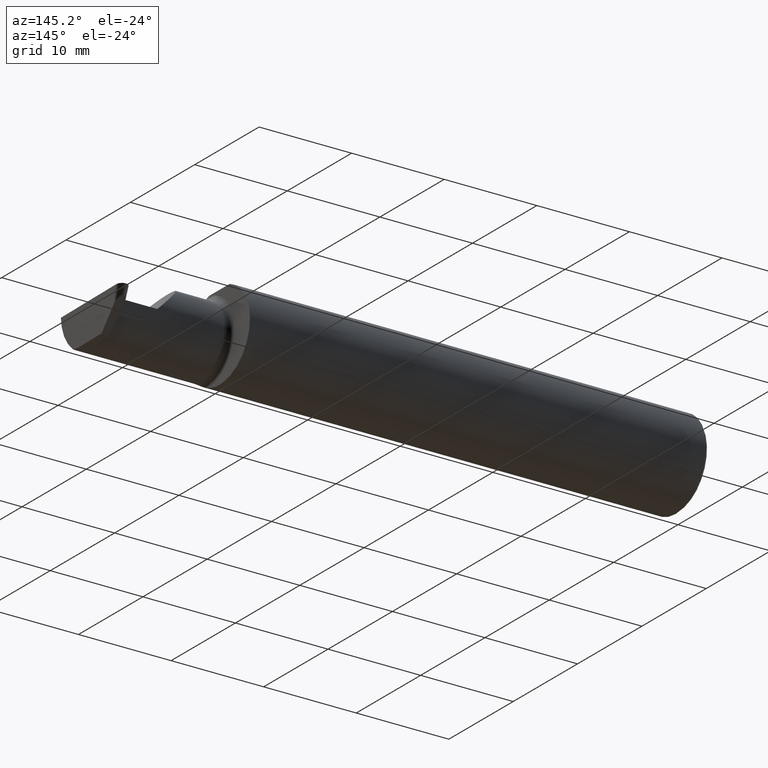
[diagram: clean part render]
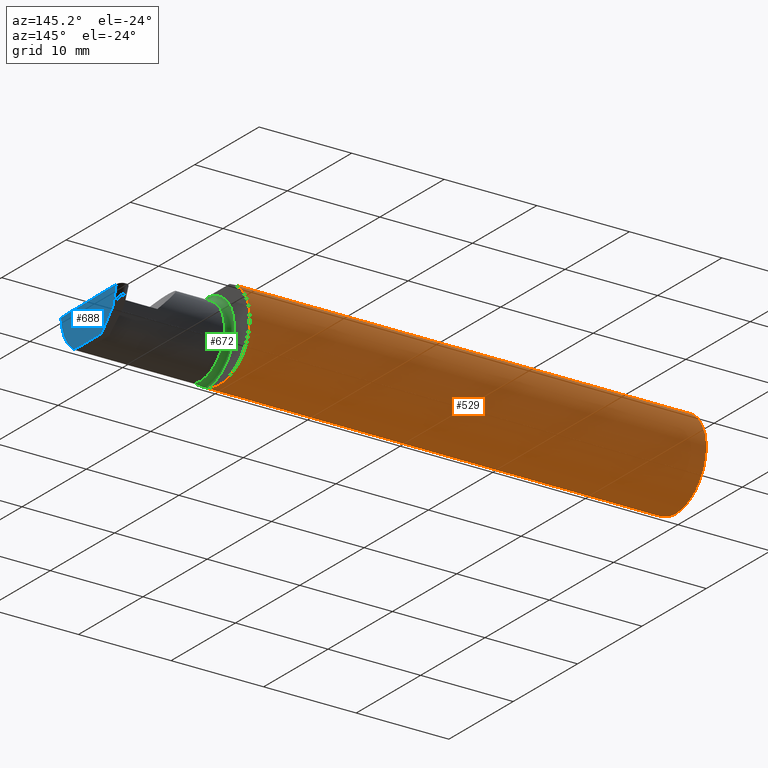
[diagram: same view with three faces highlighted in distinct colors, each labeled with its STEP entity id]
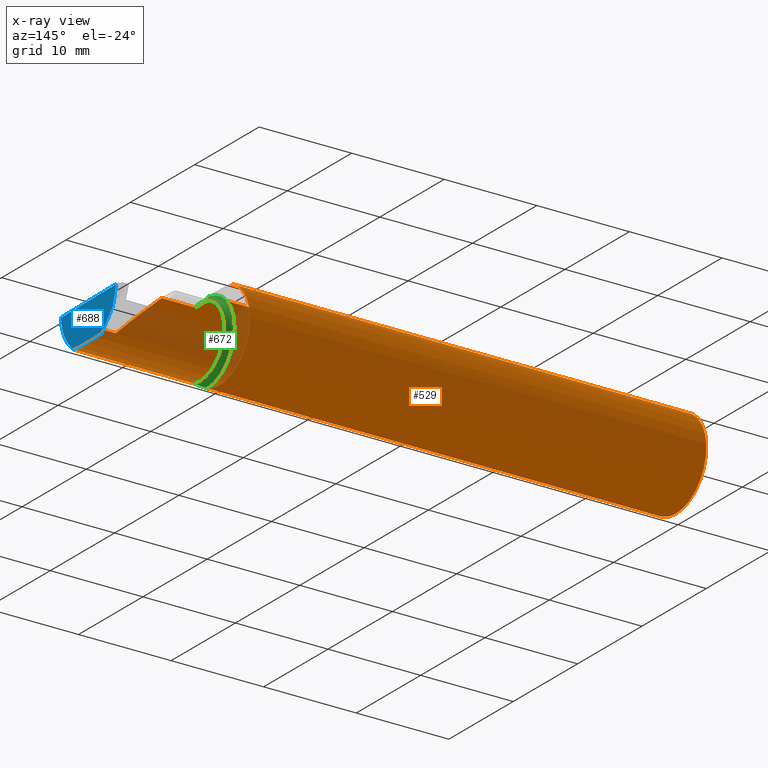
[diagram: x-ray of the same camera — body ghosted, the three highlighted faces saturated]
A machine part, auxiliary view with three faces highlighted in distinct colors.
The next image is the same camera in x-ray (body ghosted, the three faces saturated) — at least one of them is partly hidden behind the body in this view.
Their STEP definitions:

[orange] entity #529 — the highlighted cylindrical surface (partial cylindrical patch) has radius 4.7587 mm, axis along (-1, -0, -0).
#16 = AXIS2_PLACEMENT_3D ( 'NONE', #31, #24, #188 ) ;
#17 = B_SPLINE_CURVE_WITH_KNOTS ( 'NONE', 3,
 ( #687, #192, #413, #580, #301, #636, #397, #141, #358, #405, #531, #76 ),
 .UNSPECIFIED., .F., .F.,
 ( 4, 2, 2, 2, 2, 4 ),
 ( 4.423516731080767705E-05, 0.0004615475116586703792, 0.0008788598560065330814, 0.001296172200354395784, 0.001504828372528326267, 0.001713484544702256968 ),
 .UNSPECIFIED. ) ;
#24 = DIRECTION ( 'NONE',  ( 1.000000000000000000, 3.394713289407038742E-17, 0.000000000000000000 ) ) ;
#27 = VERTEX_POINT ( 'NONE', #487 ) ;
#30 = VERTEX_POINT ( 'NONE', #363 ) ;
#31 = CARTESIAN_POINT ( 'NONE',  ( 1.949999999999999956, 0.000000000000000000, 0.000000000000000000 ) ) ;
#34 = EDGE_CURVE ( 'NONE', #280, #629, #293, .T. ) ;
#48 = LINE ( 'NONE', #211, #199 ) ;
#51 = VERTEX_POINT ( 'NONE', #428 ) ;
#66 = ORIENTED_EDGE ( 'NONE', *, *, #317, .F. ) ;
#70 = CARTESIAN_POINT ( 'NONE',  ( 1.951843912362378086, -0.08846956905169084395, -0.1652353808078972919 ) ) ;
#71 = EDGE_CURVE ( 'NONE', #598, #27, #410, .T. ) ;
#75 = DIRECTION ( 'NONE',  ( 0.000000000000000000, 0.000000000000000000, -1.000000000000000000 ) ) ;
#76 = CARTESIAN_POINT ( 'NONE',  ( 1.974999999999999867, -0.1172600179964006506, 0.1461167706989304205 ) ) ;
#80 = EDGE_CURVE ( 'NONE', #183, #272, #476, .T. ) ;
#82 = CARTESIAN_POINT ( 'NONE',  ( 1.974999999999999867, -0.1172600179964006090, -0.1461167706989303927 ) ) ;
#91 = CARTESIAN_POINT ( 'NONE',  ( 2.113883229301068312, -0.1172600179964003175, 0.1461167706989304760 ) ) ;
#106 = DIRECTION ( 'NONE',  ( 1.000000000000000000, 3.394713289407038742E-17, 0.000000000000000000 ) ) ;
#111 = CARTESIAN_POINT ( 'NONE',  ( 2.150065971957464850, -0.1623470442677540371, 0.1099340280425340488 ) ) ;
#115 = CARTESIAN_POINT ( 'NONE',  ( 2.260000000000000231, -0.1873499999999999888, 2.939152317953647352E-17 ) ) ;
#120 = CIRCLE ( 'NONE', #654, 0.1873499999999999888 ) ;
#121 = ORIENTED_EDGE ( 'NONE', *, *, #71, .F. ) ;
#133 = LINE ( 'NONE', #625, #525 ) ;
#141 = CARTESIAN_POINT ( 'NONE',  ( 1.963163223656403389, -0.1119926267047277602, 0.1502091925606062750 ) ) ;
#147 = CARTESIAN_POINT ( 'NONE',  ( 2.490040979592266890, -0.1172600179964006090, -0.1461167706989303927 ) ) ;
#149 = LINE ( 'NONE', #306, #571 ) ;
#153 = CARTESIAN_POINT ( 'NONE',  ( 2.213980000000000281, -0.1172600179964006090, -0.1461167706989303927 ) ) ;
#157 = CARTESIAN_POINT ( 'NONE',  ( 2.490517704308097713, -0.1623470442677541203, -0.1099340280425338823 ) ) ;
#159 = CARTESIAN_POINT ( 'NONE',  ( 1.963203859946833552, -0.1120371980050637178, -0.1501764597936560142 ) ) ;
#160 = CARTESIAN_POINT ( 'NONE',  ( 2.493920841729410753, -0.1873499999999999888, 0.000000000000000000 ) ) ;
#165 = EDGE_CURVE ( 'NONE', #27, #412, #626, .T. ) ;
#166 = CARTESIAN_POINT ( 'NONE',  ( 1.949999999999999512, -0.07368234487347193051, -0.1723418180300748115 ) ) ;
#176 = ORIENTED_EDGE ( 'NONE', *, *, #461, .F. ) ;
#181 = CARTESIAN_POINT ( 'NONE',  ( 1.949999999999999956, -0.06851976604679065053, 0.1743704796142198643 ) ) ;
#183 = VERTEX_POINT ( 'NONE', #499 ) ;
#188 = DIRECTION ( 'NONE',  ( 0.000000000000000000, 1.000000000000000000, 0.000000000000000000 ) ) ;
#189 = DIRECTION ( 'NONE',  ( -1.000000000000000000, -0.000000000000000000, -0.000000000000000000 ) ) ;
#192 = CARTESIAN_POINT ( 'NONE',  ( 1.949999999999999956, -0.07367581953296704900, 0.1723443821957854338 ) ) ;
#194 = LINE ( 'NONE', #153, #342 ) ;
#199 = VECTOR ( 'NONE', #661, 39.37007874015748143 ) ;
#202 = EDGE_CURVE ( 'NONE', #470, #237, #489, .T. ) ;
#205 = CARTESIAN_POINT ( 'NONE',  ( 0.000000000000000000, 0.000000000000000000, 0.000000000000000000 ) ) ;
#206 = CARTESIAN_POINT ( 'NONE',  ( 2.491901754046578876, -0.1873499999999999610, -0.05781030015605125721 ) ) ;
#211 = CARTESIAN_POINT ( 'NONE',  ( 0.000000000000000000, -0.06325108694718235836, 0.1763499999999999235 ) ) ;
#225 = CARTESIAN_POINT ( 'NONE',  ( 1.958439486659306450, -0.1064616213911156600, -0.1542305641651501857 ) ) ;
#227 = EDGE_CURVE ( 'NONE', #695, #51, #297, .T. ) ;
#237 = VERTEX_POINT ( 'NONE', #181 ) ;
#246 = DIRECTION ( 'NONE',  ( -1.000000000000000000, -0.000000000000000000, -0.000000000000000000 ) ) ;
#247 = ORIENTED_EDGE ( 'NONE', *, *, #560, .F. ) ;
#252 = ORIENTED_EDGE ( 'NONE', *, *, #202, .F. ) ;
#254 = DIRECTION ( 'NONE',  ( 1.000000000000000000, 0.000000000000000000, 0.000000000000000000 ) ) ;
#258 = ORIENTED_EDGE ( 'NONE', *, *, #80, .T. ) ;
#259 = CARTESIAN_POINT ( 'NONE',  ( 0.009999999999999346217, 0.06325108694718235836, 0.1763499999999999235 ) ) ;
#260 = AXIS2_PLACEMENT_3D ( 'NONE', #579, #569, #75 ) ;
#272 = VERTEX_POINT ( 'NONE', #91 ) ;
#273 = CARTESIAN_POINT ( 'NONE',  ( 1.969511795768554174, -0.1163687266324233971, -0.1468371510166789073 ) ) ;
#274 = ORIENTED_EDGE ( 'NONE', *, *, #34, .T. ) ;
#280 = VERTEX_POINT ( 'NONE', #147 ) ;
#284 = LINE ( 'NONE', #677, #418 ) ;
#293 =( BOUNDED_CURVE ( )  B_SPLINE_CURVE ( 3, ( #595, #157, #206, #320 ),
 .UNSPECIFIED., .F., .F. ) 
 B_SPLINE_CURVE_WITH_KNOTS ( ( 4, 4 ),
 ( 0.2128041086811292559, 1.107331509589577045 ),
 .UNSPECIFIED. ) 
 CURVE ( )  GEOMETRIC_REPRESENTATION_ITEM ( )  RATIONAL_B_SPLINE_CURVE ( ( 1.000000000000000000, 0.9344226172588802060, 0.9344226172588802060, 1.000000000000000000 ) ) 
 REPRESENTATION_ITEM ( '' )  );
#295 = AXIS2_PLACEMENT_3D ( 'NONE', #604, #106, #325 ) ;
#297 = CIRCLE ( 'NONE', #260, 0.1873499999999999888 ) ;
#301 = CARTESIAN_POINT ( 'NONE',  ( 1.952945243422982369, -0.09312071749437422774, 0.1626553472577906556 ) ) ;
#306 = CARTESIAN_POINT ( 'NONE',  ( 2.213980000000000281, -0.1172600179964006090, 0.1461167706989303927 ) ) ;
#317 = EDGE_CURVE ( 'NONE', #30, #272, #149, .T. ) ;
#320 = CARTESIAN_POINT ( 'NONE',  ( 2.493920841729410753, -0.1873499999999999888, 0.000000000000000000 ) ) ;
#325 = DIRECTION ( 'NONE',  ( 0.000000000000000000, 1.000000000000000000, 0.000000000000000000 ) ) ;
#332 = CARTESIAN_POINT ( 'NONE',  ( 2.113883229301068312, -0.1172600179964003175, 0.1461167706989304760 ) ) ;
#342 = VECTOR ( 'NONE', #638, 39.37007874015748143 ) ;
#358 = CARTESIAN_POINT ( 'NONE',  ( 1.965004157323697376, -0.1137044537483316159, 0.1489098419202428691 ) ) ;
#363 = CARTESIAN_POINT ( 'NONE',  ( 1.974999999999999867, -0.1172600179964006506, 0.1461167706989304205 ) ) ;
#385 = CARTESIAN_POINT ( 'NONE',  ( 1.972174967710399685, -0.1172600179964005812, -0.1461167706989304760 ) ) ;
#387 = CARTESIAN_POINT ( 'NONE',  ( 1.952960551809340917, -0.09317341542745741223, -0.1626248379125196930 ) ) ;
#390 = EDGE_CURVE ( 'NONE', #412, #632, #133, .T. ) ;
#393 = CARTESIAN_POINT ( 'NONE',  ( 0.009999999999999346217, 0.000000000000000000, 0.000000000000000000 ) ) ;
#397 = CARTESIAN_POINT ( 'NONE',  ( 1.958475602106621194, -0.1064978748893405658, 0.1542035505680384166 ) ) ;
#405 = CARTESIAN_POINT ( 'NONE',  ( 1.969481469043492528, -0.1163560528186165510, 0.1468472430636323656 ) ) ;
#407 = EDGE_LOOP ( 'NONE', ( #247, #274, #416, #258, #66, #176, #252, #501, #504, #557, #519, #639, #121 ) ) ;
#410 = B_SPLINE_CURVE_WITH_KNOTS ( 'NONE', 3,
 ( #658, #385, #273, #664, #159, #225, #446, #387, #70, #668, #166, #502 ),
 .UNSPECIFIED., .F., .F.,
 ( 4, 2, 2, 2, 2, 4 ),
 ( 1.967976973726874814E-07, 0.0002120314145722334523, 0.0004238660314470941797, 0.0008475352651968039251, 0.001271204498946513616, 0.001694873732696223307 ),
 .UNSPECIFIED. ) ;
#412 = VERTEX_POINT ( 'NONE', #457 ) ;
#413 = CARTESIAN_POINT ( 'NONE',  ( 1.950353553376444671, -0.07868116735658677030, 0.1701139256562800572 ) ) ;
#416 = ORIENTED_EDGE ( 'NONE', *, *, #439, .T. ) ;
#418 = VECTOR ( 'NONE', #464, 39.37007874015748143 ) ;
#428 = CARTESIAN_POINT ( 'NONE',  ( 0.009999999999999346217, 0.000000000000000000, -0.1873499999999999888 ) ) ;
#439 = EDGE_CURVE ( 'NONE', #629, #183, #284, .T. ) ;
#446 = CARTESIAN_POINT ( 'NONE',  ( 1.956304331342286762, -0.1022198306720690231, -0.1570962426853819704 ) ) ;
#457 = CARTESIAN_POINT ( 'NONE',  ( 1.949999999999999956, 0.06325108694718235836, 0.1763499999999999235 ) ) ;
#461 = EDGE_CURVE ( 'NONE', #237, #30, #17, .T. ) ;
#464 = DIRECTION ( 'NONE',  ( -1.000000000000000000, -0.000000000000000000, -0.000000000000000000 ) ) ;
#469 = CYLINDRICAL_SURFACE ( 'NONE', #478, 0.1873499999999999888 ) ;
#470 = VERTEX_POINT ( 'NONE', #513 ) ;
#475 = DIRECTION ( 'NONE',  ( 1.000000000000000000, 3.394713289407038742E-17, 0.000000000000000000 ) ) ;
#476 =( BOUNDED_CURVE ( )  B_SPLINE_CURVE ( 3, ( #115, #608, #111, #332 ),
 .UNSPECIFIED., .F., .F. ) 
 B_SPLINE_CURVE_WITH_KNOTS ( ( 4, 4 ),
 ( 4.712388980384688786, 5.606916381293139295 ),
 .UNSPECIFIED. ) 
 CURVE ( )  GEOMETRIC_REPRESENTATION_ITEM ( )  RATIONAL_B_SPLINE_CURVE ( ( 1.000000000000000000, 0.9344226172588797619, 0.9344226172588797619, 1.000000000000000000 ) ) 
 REPRESENTATION_ITEM ( '' )  );
#478 = AXIS2_PLACEMENT_3D ( 'NONE', #205, #246, #646 ) ;
#485 = DIRECTION ( 'NONE',  ( 0.000000000000000000, 0.000000000000000000, -1.000000000000000000 ) ) ;
#487 = CARTESIAN_POINT ( 'NONE',  ( 1.949999999999999956, -0.06851976604679065053, -0.1743704796142198643 ) ) ;
#489 = CIRCLE ( 'NONE', #16, 0.1873499999999999888 ) ;
#495 = CARTESIAN_POINT ( 'NONE',  ( 0.009999999999999346217, -0.06325108694718235836, 0.1763499999999999235 ) ) ;
#499 = CARTESIAN_POINT ( 'NONE',  ( 2.260000000000000231, -0.1873499999999999888, 2.939152317953647352E-17 ) ) ;
#501 = ORIENTED_EDGE ( 'NONE', *, *, #652, .F. ) ;
#502 = CARTESIAN_POINT ( 'NONE',  ( 1.949999999999999956, -0.06851976604679065053, -0.1743704796142198643 ) ) ;
#504 = ORIENTED_EDGE ( 'NONE', *, *, #227, .T. ) ;
#513 = CARTESIAN_POINT ( 'NONE',  ( 1.949999999999999956, -0.06325108694718283020, 0.1763499999999999235 ) ) ;
#519 = ORIENTED_EDGE ( 'NONE', *, *, #390, .F. ) ;
#525 = VECTOR ( 'NONE', #189, 39.37007874015748143 ) ;
#528 = FACE_OUTER_BOUND ( 'NONE', #407, .T. ) ;
#529 = ADVANCED_FACE ( 'NONE', ( #528 ), #469, .T. ) ;
#531 = CARTESIAN_POINT ( 'NONE',  ( 1.972161949849307927, -0.1172600179964061184, 0.1461167706989260351 ) ) ;
#557 = ORIENTED_EDGE ( 'NONE', *, *, #700, .T. ) ;
#560 = EDGE_CURVE ( 'NONE', #280, #598, #194, .T. ) ;
#569 = DIRECTION ( 'NONE',  ( 1.000000000000000000, 0.000000000000000000, 0.000000000000000000 ) ) ;
#571 = VECTOR ( 'NONE', #475, 39.37007874015748143 ) ;
#579 = CARTESIAN_POINT ( 'NONE',  ( 0.009999999999999346217, 0.000000000000000000, 0.000000000000000000 ) ) ;
#580 = CARTESIAN_POINT ( 'NONE',  ( 1.951829077486400443, -0.08839624499054650475, 0.1652742498708037744 ) ) ;
#595 = CARTESIAN_POINT ( 'NONE',  ( 2.490040979592266890, -0.1172600179964006090, -0.1461167706989303927 ) ) ;
#598 = VERTEX_POINT ( 'NONE', #82 ) ;
#604 = CARTESIAN_POINT ( 'NONE',  ( 1.949999999999999956, 0.000000000000000000, 0.000000000000000000 ) ) ;
#608 = CARTESIAN_POINT ( 'NONE',  ( 2.202189699843948301, -0.1873500000000000443, 0.05781030015605120170 ) ) ;
#625 = CARTESIAN_POINT ( 'NONE',  ( 0.000000000000000000, 0.06325108694718235836, 0.1763499999999999235 ) ) ;
#626 = CIRCLE ( 'NONE', #295, 0.1873499999999999888 ) ;
#629 = VERTEX_POINT ( 'NONE', #160 ) ;
#632 = VERTEX_POINT ( 'NONE', #259 ) ;
#636 = CARTESIAN_POINT ( 'NONE',  ( 1.956287624083519416, -0.1021858045380144991, 0.1571187174372875306 ) ) ;
#638 = DIRECTION ( 'NONE',  ( -1.000000000000000000, -3.394713289407038742E-17, -0.000000000000000000 ) ) ;
#639 = ORIENTED_EDGE ( 'NONE', *, *, #165, .F. ) ;
#646 = DIRECTION ( 'NONE',  ( 0.000000000000000000, 0.000000000000000000, 1.000000000000000000 ) ) ;
#652 = EDGE_CURVE ( 'NONE', #695, #470, #48, .T. ) ;
#654 = AXIS2_PLACEMENT_3D ( 'NONE', #393, #254, #485 ) ;
#658 = CARTESIAN_POINT ( 'NONE',  ( 1.974999999999999867, -0.1172600179964006090, -0.1461167706989303927 ) ) ;
#661 = DIRECTION ( 'NONE',  ( 1.000000000000000000, 0.000000000000000000, 0.000000000000000000 ) ) ;
#664 = CARTESIAN_POINT ( 'NONE',  ( 1.965028532764137914, -0.1137241120808234474, -0.1488947809299404901 ) ) ;
#668 = CARTESIAN_POINT ( 'NONE',  ( 1.950358271039143832, -0.07873626113568080176, -0.1700887912276895508 ) ) ;
#677 = CARTESIAN_POINT ( 'NONE',  ( 3.749399456654646757E-32, -0.1873499999999999610, 3.061616997868383634E-16 ) ) ;
#687 = CARTESIAN_POINT ( 'NONE',  ( 1.949999999999999956, -0.06851976604679065053, 0.1743704796142198643 ) ) ;
#695 = VERTEX_POINT ( 'NONE', #495 ) ;
#700 = EDGE_CURVE ( 'NONE', #51, #632, #120, .T. ) ;

[blue] entity #688 — the highlighted planar face has unit normal (-0.9992, 0.0174, 0.0349).
#6 = FACE_OUTER_BOUND ( 'NONE', #64, .T. ) ;
#34 = EDGE_CURVE ( 'NONE', #280, #629, #293, .T. ) ;
#53 = DIRECTION ( 'NONE',  ( -0.01745240643727575397, -0.9998476951563912696, 0.000000000000000000 ) ) ;
#58 = CARTESIAN_POINT ( 'NONE',  ( 2.499996417790078862, 0.1607195194005952565, 0.000000000000000000 ) ) ;
#64 = EDGE_LOOP ( 'NONE', ( #116, #455, #620, #403, #510, #384 ) ) ;
#67 = CARTESIAN_POINT ( 'NONE',  ( 2.499991330919623778, 0.1598853660763216722, 0.0002712393593816879249 ) ) ;
#88 = EDGE_CURVE ( 'NONE', #651, #386, #559, .T. ) ;
#107 = DIRECTION ( 'NONE',  ( -0.9992386149554827179, 0.01744177490282240728, 0.03489949670250104552 ) ) ;
#116 = ORIENTED_EDGE ( 'NONE', *, *, #642, .F. ) ;
#136 = CARTESIAN_POINT ( 'NONE',  ( 2.499980319257137484, 0.1597972350660649132, 0.000000000000000000 ) ) ;
#147 = CARTESIAN_POINT ( 'NONE',  ( 2.490040979592266890, -0.1172600179964006090, -0.1461167706989303927 ) ) ;
#155 = VECTOR ( 'NONE', #164, 39.37007874015748143 ) ;
#156 = CARTESIAN_POINT ( 'NONE',  ( 2.490145048687840479, -0.1061291577212409298, -0.1486999626928446616 ) ) ;
#157 = CARTESIAN_POINT ( 'NONE',  ( 2.490517704308097713, -0.1623470442677541203, -0.1099340280425338823 ) ) ;
#160 = CARTESIAN_POINT ( 'NONE',  ( 2.493920841729410753, -0.1873499999999999888, 0.000000000000000000 ) ) ;
#163 = DIRECTION ( 'NONE',  ( 0.03858184836401778312, 0.3087869137032490108, 0.9503484007996426675 ) ) ;
#164 = DIRECTION ( 'NONE',  ( -0.03701368837992397021, -0.7066222423871549863, -0.7066222423871630909 ) ) ;
#170 = VECTOR ( 'NONE', #408, 39.37007874015747433 ) ;
#206 = CARTESIAN_POINT ( 'NONE',  ( 2.491901754046578876, -0.1873499999999999610, -0.05781030015605125721 ) ) ;
#215 = EDGE_CURVE ( 'NONE', #331, #422, #516, .T. ) ;
#219 = LINE ( 'NONE', #444, #155 ) ;
#224 = PLANE ( 'NONE',  #383 ) ;
#280 = VERTEX_POINT ( 'NONE', #147 ) ;
#293 =( BOUNDED_CURVE ( )  B_SPLINE_CURVE ( 3, ( #595, #157, #206, #320 ),
 .UNSPECIFIED., .F., .F. ) 
 B_SPLINE_CURVE_WITH_KNOTS ( ( 4, 4 ),
 ( 0.2128041086811292559, 1.107331509589577045 ),
 .UNSPECIFIED. ) 
 CURVE ( )  GEOMETRIC_REPRESENTATION_ITEM ( )  RATIONAL_B_SPLINE_CURVE ( ( 1.000000000000000000, 0.9344226172588802060, 0.9344226172588802060, 1.000000000000000000 ) ) 
 REPRESENTATION_ITEM ( '' )  );
#300 = CARTESIAN_POINT ( 'NONE',  ( 2.490297801769516539, -0.09477667630339428606, -0.1500000000000000222 ) ) ;
#304 = EDGE_CURVE ( 'NONE', #280, #422, #420, .T. ) ;
#318 = CARTESIAN_POINT ( 'NONE',  ( 2.496943030093102145, 0.1354885203010862682, -0.07481453124206371985 ) ) ;
#320 = CARTESIAN_POINT ( 'NONE',  ( 2.493920841729410753, -0.1873499999999999888, 0.000000000000000000 ) ) ;
#331 = VERTEX_POINT ( 'NONE', #373 ) ;
#368 = CARTESIAN_POINT ( 'NONE',  ( 2.490497255146305822, -0.08335000000000006293, -0.1500000000000000500 ) ) ;
#373 = CARTESIAN_POINT ( 'NONE',  ( 2.493004728488126265, 0.06030305154315079158, -0.1500000000000000500 ) ) ;
#383 = AXIS2_PLACEMENT_3D ( 'NONE', #58, #107, #549 ) ;
#384 = ORIENTED_EDGE ( 'NONE', *, *, #215, .F. ) ;
#386 = VERTEX_POINT ( 'NONE', #136 ) ;
#403 = ORIENTED_EDGE ( 'NONE', *, *, #34, .F. ) ;
#408 = DIRECTION ( 'NONE',  ( -0.01745240643727576091, -0.9998476951563914916, 0.000000000000000000 ) ) ;
#420 =( BOUNDED_CURVE ( )  B_SPLINE_CURVE ( 3, ( #471, #156, #300, #368 ),
 .UNSPECIFIED., .F., .F. ) 
 B_SPLINE_CURVE_WITH_KNOTS ( ( 4, 4 ),
 ( 0.2354267821558766460, 0.4634648172053196791 ),
 .UNSPECIFIED. ) 
 CURVE ( )  GEOMETRIC_REPRESENTATION_ITEM ( )  RATIONAL_B_SPLINE_CURVE ( ( 1.000000000000000000, 0.9956712472009929815, 0.9956712472009929815, 1.000000000000000000 ) ) 
 REPRESENTATION_ITEM ( '' )  );
#422 = VERTEX_POINT ( 'NONE', #622 ) ;
#444 = CARTESIAN_POINT ( 'NONE',  ( 2.495446507120537838, 0.1069186461560726192, -0.1033844053870776880 ) ) ;
#445 = VECTOR ( 'NONE', #53, 39.37007874015748854 ) ;
#454 = VECTOR ( 'NONE', #163, 39.37007874015748854 ) ;
#455 = ORIENTED_EDGE ( 'NONE', *, *, #88, .T. ) ;
#471 = CARTESIAN_POINT ( 'NONE',  ( 2.490040979592266890, -0.1172600179964006090, -0.1461167706989303927 ) ) ;
#510 = ORIENTED_EDGE ( 'NONE', *, *, #304, .T. ) ;
#516 = LINE ( 'NONE', #575, #170 ) ;
#518 = LINE ( 'NONE', #545, #445 ) ;
#545 = CARTESIAN_POINT ( 'NONE',  ( 2.499996417790078862, 0.1607195194005952565, 0.000000000000000000 ) ) ;
#549 = DIRECTION ( 'NONE',  ( 0.03490480639812536257, 0.000000000000000000, 0.9993906415863165194 ) ) ;
#559 = LINE ( 'NONE', #67, #454 ) ;
#575 = CARTESIAN_POINT ( 'NONE',  ( 2.490571174359867967, -0.07911517109126284253, -0.1500000000000000500 ) ) ;
#595 = CARTESIAN_POINT ( 'NONE',  ( 2.490040979592266890, -0.1172600179964006090, -0.1461167706989303927 ) ) ;
#614 = EDGE_CURVE ( 'NONE', #386, #629, #518, .T. ) ;
#620 = ORIENTED_EDGE ( 'NONE', *, *, #614, .T. ) ;
#622 = CARTESIAN_POINT ( 'NONE',  ( 2.490497255146305822, -0.08335000000000006293, -0.1500000000000000500 ) ) ;
#629 = VERTEX_POINT ( 'NONE', #160 ) ;
#642 = EDGE_CURVE ( 'NONE', #651, #331, #219, .T. ) ;
#651 = VERTEX_POINT ( 'NONE', #318 ) ;
#688 = ADVANCED_FACE ( 'NONE', ( #6 ), #224, .F. ) ;

[green] entity #672 — the highlighted toroidal blend (fillet) surface has major radius 4.445 mm and minor (blend) radius 0.635 mm.
#17 = B_SPLINE_CURVE_WITH_KNOTS ( 'NONE', 3,
 ( #687, #192, #413, #580, #301, #636, #397, #141, #358, #405, #531, #76 ),
 .UNSPECIFIED., .F., .F.,
 ( 4, 2, 2, 2, 2, 4 ),
 ( 4.423516731080767705E-05, 0.0004615475116586703792, 0.0008788598560065330814, 0.001296172200354395784, 0.001504828372528326267, 0.001713484544702256968 ),
 .UNSPECIFIED. ) ;
#27 = VERTEX_POINT ( 'NONE', #487 ) ;
#30 = VERTEX_POINT ( 'NONE', #363 ) ;
#60 = ORIENTED_EDGE ( 'NONE', *, *, #461, .T. ) ;
#62 = DIRECTION ( 'NONE',  ( 3.394713289407038742E-17, -1.000000000000000000, 0.000000000000000000 ) ) ;
#70 = CARTESIAN_POINT ( 'NONE',  ( 1.951843912362378086, -0.08846956905169084395, -0.1652353808078972919 ) ) ;
#71 = EDGE_CURVE ( 'NONE', #598, #27, #410, .T. ) ;
#76 = CARTESIAN_POINT ( 'NONE',  ( 1.974999999999999867, -0.1172600179964006506, 0.1461167706989304205 ) ) ;
#82 = CARTESIAN_POINT ( 'NONE',  ( 1.974999999999999867, -0.1172600179964006090, -0.1461167706989303927 ) ) ;
#89 = CIRCLE ( 'NONE', #144, 0.1500000000000000500 ) ;
#141 = CARTESIAN_POINT ( 'NONE',  ( 1.963163223656403389, -0.1119926267047277602, 0.1502091925606062750 ) ) ;
#143 = CIRCLE ( 'NONE', #466, 0.1749999999999999889 ) ;
#144 = AXIS2_PLACEMENT_3D ( 'NONE', #565, #617, #289 ) ;
#159 = CARTESIAN_POINT ( 'NONE',  ( 1.963203859946833552, -0.1120371980050637178, -0.1501764597936560142 ) ) ;
#166 = CARTESIAN_POINT ( 'NONE',  ( 1.949999999999999512, -0.07368234487347193051, -0.1723418180300748115 ) ) ;
#181 = CARTESIAN_POINT ( 'NONE',  ( 1.949999999999999956, -0.06851976604679065053, 0.1743704796142198643 ) ) ;
#192 = CARTESIAN_POINT ( 'NONE',  ( 1.949999999999999956, -0.07367581953296704900, 0.1723443821957854338 ) ) ;
#225 = CARTESIAN_POINT ( 'NONE',  ( 1.958439486659306450, -0.1064616213911156600, -0.1542305641651501857 ) ) ;
#231 = DIRECTION ( 'NONE',  ( -1.000000000000000000, -3.394713289407038742E-17, -0.000000000000000000 ) ) ;
#237 = VERTEX_POINT ( 'NONE', #181 ) ;
#262 = TOROIDAL_SURFACE ( 'NONE', #665, 0.1749999999999999889, 0.02499999999999993894 ) ;
#273 = CARTESIAN_POINT ( 'NONE',  ( 1.969511795768554174, -0.1163687266324233971, -0.1468371510166789073 ) ) ;
#289 = DIRECTION ( 'NONE',  ( 0.000000000000000000, -1.000000000000000000, 0.000000000000000000 ) ) ;
#301 = CARTESIAN_POINT ( 'NONE',  ( 1.952945243422982369, -0.09312071749437422774, 0.1626553472577906556 ) ) ;
#349 = ORIENTED_EDGE ( 'NONE', *, *, #71, .T. ) ;
#358 = CARTESIAN_POINT ( 'NONE',  ( 1.965004157323697376, -0.1137044537483316159, 0.1489098419202428691 ) ) ;
#363 = CARTESIAN_POINT ( 'NONE',  ( 1.974999999999999867, -0.1172600179964006506, 0.1461167706989304205 ) ) ;
#376 = DIRECTION ( 'NONE',  ( -1.000000000000000000, -3.394713289407038742E-17, -0.000000000000000000 ) ) ;
#380 = EDGE_CURVE ( 'NONE', #237, #27, #143, .T. ) ;
#385 = CARTESIAN_POINT ( 'NONE',  ( 1.972174967710399685, -0.1172600179964005812, -0.1461167706989304760 ) ) ;
#387 = CARTESIAN_POINT ( 'NONE',  ( 1.952960551809340917, -0.09317341542745741223, -0.1626248379125196930 ) ) ;
#397 = CARTESIAN_POINT ( 'NONE',  ( 1.958475602106621194, -0.1064978748893405658, 0.1542035505680384166 ) ) ;
#398 = ORIENTED_EDGE ( 'NONE', *, *, #602, .T. ) ;
#405 = CARTESIAN_POINT ( 'NONE',  ( 1.969481469043492528, -0.1163560528186165510, 0.1468472430636323656 ) ) ;
#410 = B_SPLINE_CURVE_WITH_KNOTS ( 'NONE', 3,
 ( #658, #385, #273, #664, #159, #225, #446, #387, #70, #668, #166, #502 ),
 .UNSPECIFIED., .F., .F.,
 ( 4, 2, 2, 2, 2, 4 ),
 ( 1.967976973726874814E-07, 0.0002120314145722334523, 0.0004238660314470941797, 0.0008475352651968039251, 0.001271204498946513616, 0.001694873732696223307 ),
 .UNSPECIFIED. ) ;
#413 = CARTESIAN_POINT ( 'NONE',  ( 1.950353553376444671, -0.07868116735658677030, 0.1701139256562800572 ) ) ;
#435 = FACE_OUTER_BOUND ( 'NONE', #702, .T. ) ;
#446 = CARTESIAN_POINT ( 'NONE',  ( 1.956304331342286762, -0.1022198306720690231, -0.1570962426853819704 ) ) ;
#461 = EDGE_CURVE ( 'NONE', #237, #30, #17, .T. ) ;
#465 = ORIENTED_EDGE ( 'NONE', *, *, #380, .F. ) ;
#466 = AXIS2_PLACEMENT_3D ( 'NONE', #467, #231, #690 ) ;
#467 = CARTESIAN_POINT ( 'NONE',  ( 1.949999999999999956, -0.08335000000000000742, 0.000000000000000000 ) ) ;
#487 = CARTESIAN_POINT ( 'NONE',  ( 1.949999999999999956, -0.06851976604679065053, -0.1743704796142198643 ) ) ;
#502 = CARTESIAN_POINT ( 'NONE',  ( 1.949999999999999956, -0.06851976604679065053, -0.1743704796142198643 ) ) ;
#531 = CARTESIAN_POINT ( 'NONE',  ( 1.972161949849307927, -0.1172600179964061184, 0.1461167706989260351 ) ) ;
#538 = CARTESIAN_POINT ( 'NONE',  ( 1.974999999999999867, -0.08334999999999999354, 0.000000000000000000 ) ) ;
#565 = CARTESIAN_POINT ( 'NONE',  ( 1.974999999999999867, -0.08335000000000000742, 0.000000000000000000 ) ) ;
#580 = CARTESIAN_POINT ( 'NONE',  ( 1.951829077486400443, -0.08839624499054650475, 0.1652742498708037744 ) ) ;
#598 = VERTEX_POINT ( 'NONE', #82 ) ;
#602 = EDGE_CURVE ( 'NONE', #30, #598, #89, .T. ) ;
#617 = DIRECTION ( 'NONE',  ( -1.000000000000000000, -3.394713289407038742E-17, -0.000000000000000000 ) ) ;
#636 = CARTESIAN_POINT ( 'NONE',  ( 1.956287624083519416, -0.1021858045380144991, 0.1571187174372875306 ) ) ;
#658 = CARTESIAN_POINT ( 'NONE',  ( 1.974999999999999867, -0.1172600179964006090, -0.1461167706989303927 ) ) ;
#664 = CARTESIAN_POINT ( 'NONE',  ( 1.965028532764137914, -0.1137241120808234474, -0.1488947809299404901 ) ) ;
#665 = AXIS2_PLACEMENT_3D ( 'NONE', #538, #376, #62 ) ;
#668 = CARTESIAN_POINT ( 'NONE',  ( 1.950358271039143832, -0.07873626113568080176, -0.1700887912276895508 ) ) ;
#672 = ADVANCED_FACE ( 'NONE', ( #435 ), #262, .F. ) ;
#687 = CARTESIAN_POINT ( 'NONE',  ( 1.949999999999999956, -0.06851976604679065053, 0.1743704796142198643 ) ) ;
#690 = DIRECTION ( 'NONE',  ( 0.000000000000000000, -1.000000000000000000, 0.000000000000000000 ) ) ;
#702 = EDGE_LOOP ( 'NONE', ( #60, #398, #349, #465 ) ) ;